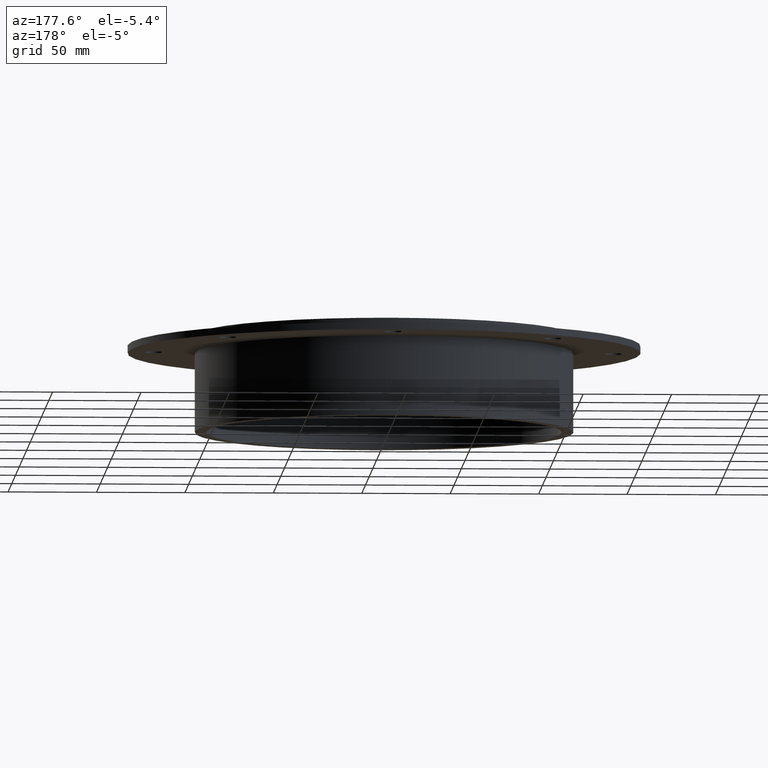
[diagram: clean part render]
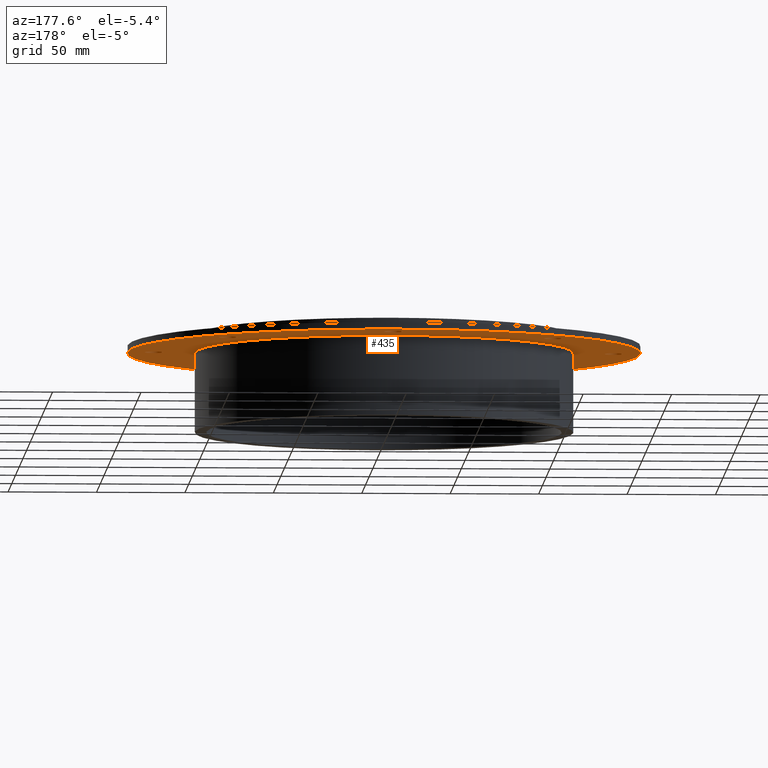
[diagram: same view with one face highlighted and labeled with its STEP entity id]
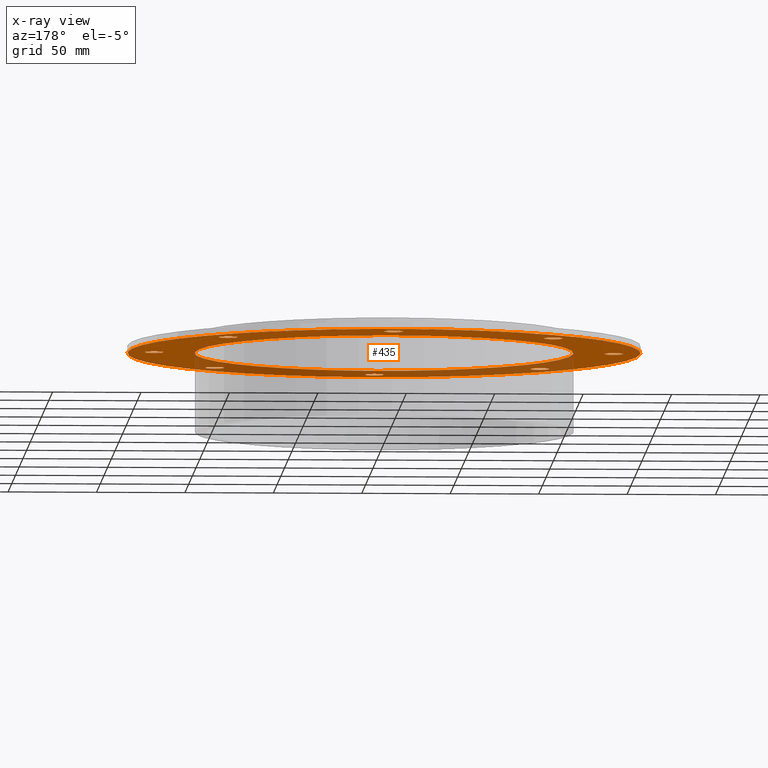
[diagram: x-ray of the same camera — body ghosted, the highlighted face saturated]
A machine part, auxiliary view. The second image highlights one B-rep face of the part: STEP entity #435.
The next image is the same camera in x-ray: the body ghosted, the highlighted face saturated — about 33% of this face is hidden behind the body in this view.
In plain terms, the highlighted planar face has unit normal (0, 0, 1).
Its self-contained STEP definition (entity closure, byte-faithful):
#73=CARTESIAN_POINT('',(-135.25,-6.429396E-016,-10.0));
#74=VERTEX_POINT('',#73);
#75=CARTESIAN_POINT('',(-130.0,0.0,-10.0));
#76=DIRECTION('',(0.0,0.0,1.0));
#77=DIRECTION('',(1.0,0.0,0.0));
#78=AXIS2_PLACEMENT_3D('',#75,#76,#77);
#79=CIRCLE('',#78,5.25);
#80=EDGE_CURVE('',#74,#74,#79,.T.);
#101=CARTESIAN_POINT('',(-5.250000000000027,-130.0,-10.0));
#102=VERTEX_POINT('',#101);
#103=CARTESIAN_POINT('',(-2.664535E-014,-130.0,-10.0));
#104=DIRECTION('',(0.0,0.0,1.0));
#105=DIRECTION('',(1.0,0.0,0.0));
#106=AXIS2_PLACEMENT_3D('',#103,#104,#105);
#107=CIRCLE('',#106,5.25);
#108=EDGE_CURVE('',#102,#102,#107,.T.);
#129=CARTESIAN_POINT('',(124.75,-2.728829E-014,-10.0));
#130=VERTEX_POINT('',#129);
#131=CARTESIAN_POINT('',(130.0,-2.664535E-014,-10.0));
#132=DIRECTION('',(0.0,0.0,1.0));
#133=DIRECTION('',(1.0,0.0,0.0));
#134=AXIS2_PLACEMENT_3D('',#131,#132,#133);
#135=CIRCLE('',#134,5.25);
#136=EDGE_CURVE('',#130,#130,#135,.T.);
#157=CARTESIAN_POINT('',(-5.25,130.0,-10.0));
#158=VERTEX_POINT('',#157);
#159=CARTESIAN_POINT('',(0.0,130.0,-10.0));
#160=DIRECTION('',(0.0,0.0,1.0));
#161=DIRECTION('',(1.0,0.0,0.0));
#162=AXIS2_PLACEMENT_3D('',#159,#160,#161);
#163=CIRCLE('',#162,5.25);
#164=EDGE_CURVE('',#158,#158,#163,.T.);
#185=CARTESIAN_POINT('',(86.67388155425121,91.923881554251182,-10.0));
#186=VERTEX_POINT('',#185);
#187=CARTESIAN_POINT('',(91.92388155425121,91.923881554251182,-10.0));
#188=DIRECTION('',(0.0,0.0,1.0));
#189=DIRECTION('',(1.0,0.0,0.0));
#190=AXIS2_PLACEMENT_3D('',#187,#188,#189);
#191=CIRCLE('',#190,5.25);
#192=EDGE_CURVE('',#186,#186,#191,.T.);
#213=CARTESIAN_POINT('',(86.673881554251167,-91.92388155425121,-10.0));
#214=VERTEX_POINT('',#213);
#215=CARTESIAN_POINT('',(91.923881554251182,-91.92388155425121,-10.0));
#216=DIRECTION('',(0.0,0.0,1.0));
#217=DIRECTION('',(1.0,0.0,0.0));
#218=AXIS2_PLACEMENT_3D('',#215,#216,#217);
#219=CIRCLE('',#218,5.25);
#220=EDGE_CURVE('',#214,#214,#219,.T.);
#241=CARTESIAN_POINT('',(-97.17388155425121,-91.923881554251196,-10.0));
#242=VERTEX_POINT('',#241);
#243=CARTESIAN_POINT('',(-91.92388155425121,-91.923881554251196,-10.0));
#244=DIRECTION('',(0.0,0.0,1.0));
#245=DIRECTION('',(1.0,0.0,0.0));
#246=AXIS2_PLACEMENT_3D('',#243,#244,#245);
#247=CIRCLE('',#246,5.25);
#248=EDGE_CURVE('',#242,#242,#247,.T.);
#269=CARTESIAN_POINT('',(-97.173881554251196,91.92388155425121,-10.0));
#270=VERTEX_POINT('',#269);
#271=CARTESIAN_POINT('',(-91.923881554251196,91.92388155425121,-10.0));
#272=DIRECTION('',(0.0,0.0,1.0));
#273=DIRECTION('',(1.0,0.0,0.0));
#274=AXIS2_PLACEMENT_3D('',#271,#272,#273);
#275=CIRCLE('',#274,5.25);
#276=EDGE_CURVE('',#270,#270,#275,.T.);
#384=CARTESIAN_POINT('',(-8.013508E-015,3.266863E-015,-10.000000000000004));
#385=DIRECTION('',(0.0,0.0,1.0));
#386=DIRECTION('',(1.0,0.0,0.0));
#387=AXIS2_PLACEMENT_3D('',#384,#385,#386);
#388=PLANE('',#387);
#389=CARTESIAN_POINT('',(145.0,1.775738E-014,-10.0));
#390=VERTEX_POINT('',#389);
#391=CARTESIAN_POINT('',(0.0,0.0,-10.0));
#392=DIRECTION('',(0.0,0.0,-1.0));
#393=DIRECTION('',(-1.0,0.0,0.0));
#394=AXIS2_PLACEMENT_3D('',#391,#392,#393);
#395=CIRCLE('',#394,145.0);
#396=EDGE_CURVE('',#390,#390,#395,.T.);
#397=ORIENTED_EDGE('',*,*,#396,.T.);
#398=EDGE_LOOP('',(#397));
#399=FACE_OUTER_BOUND('',#398,.T.);
#400=ORIENTED_EDGE('',*,*,#80,.T.);
#401=EDGE_LOOP('',(#400));
#402=FACE_BOUND('',#401,.T.);
#403=ORIENTED_EDGE('',*,*,#108,.T.);
#404=EDGE_LOOP('',(#403));
#405=FACE_BOUND('',#404,.T.);
#406=ORIENTED_EDGE('',*,*,#136,.T.);
#407=EDGE_LOOP('',(#406));
#408=FACE_BOUND('',#407,.T.);
#409=ORIENTED_EDGE('',*,*,#164,.T.);
#410=EDGE_LOOP('',(#409));
#411=FACE_BOUND('',#410,.T.);
#412=ORIENTED_EDGE('',*,*,#192,.T.);
#413=EDGE_LOOP('',(#412));
#414=FACE_BOUND('',#413,.T.);
#415=ORIENTED_EDGE('',*,*,#220,.T.);
#416=EDGE_LOOP('',(#415));
#417=FACE_BOUND('',#416,.T.);
#418=ORIENTED_EDGE('',*,*,#248,.T.);
#419=EDGE_LOOP('',(#418));
#420=FACE_BOUND('',#419,.T.);
#421=ORIENTED_EDGE('',*,*,#276,.T.);
#422=EDGE_LOOP('',(#421));
#423=FACE_BOUND('',#422,.T.);
#424=CARTESIAN_POINT('',(107.00000000000001,1.310372E-014,-10.0));
#425=VERTEX_POINT('',#424);
#426=CARTESIAN_POINT('',(0.0,0.0,-10.000000000000004));
#427=DIRECTION('',(0.0,0.0,-1.0));
#428=DIRECTION('',(-1.0,0.0,0.0));
#429=AXIS2_PLACEMENT_3D('',#426,#427,#428);
#430=CIRCLE('',#429,107.00000000000001);
#431=EDGE_CURVE('',#425,#425,#430,.T.);
#432=ORIENTED_EDGE('',*,*,#431,.F.);
#433=EDGE_LOOP('',(#432));
#434=FACE_BOUND('',#433,.T.);
#435=ADVANCED_FACE('',(#399,#402,#405,#408,#411,#414,#417,#420,#423,#434),#388,.F.);